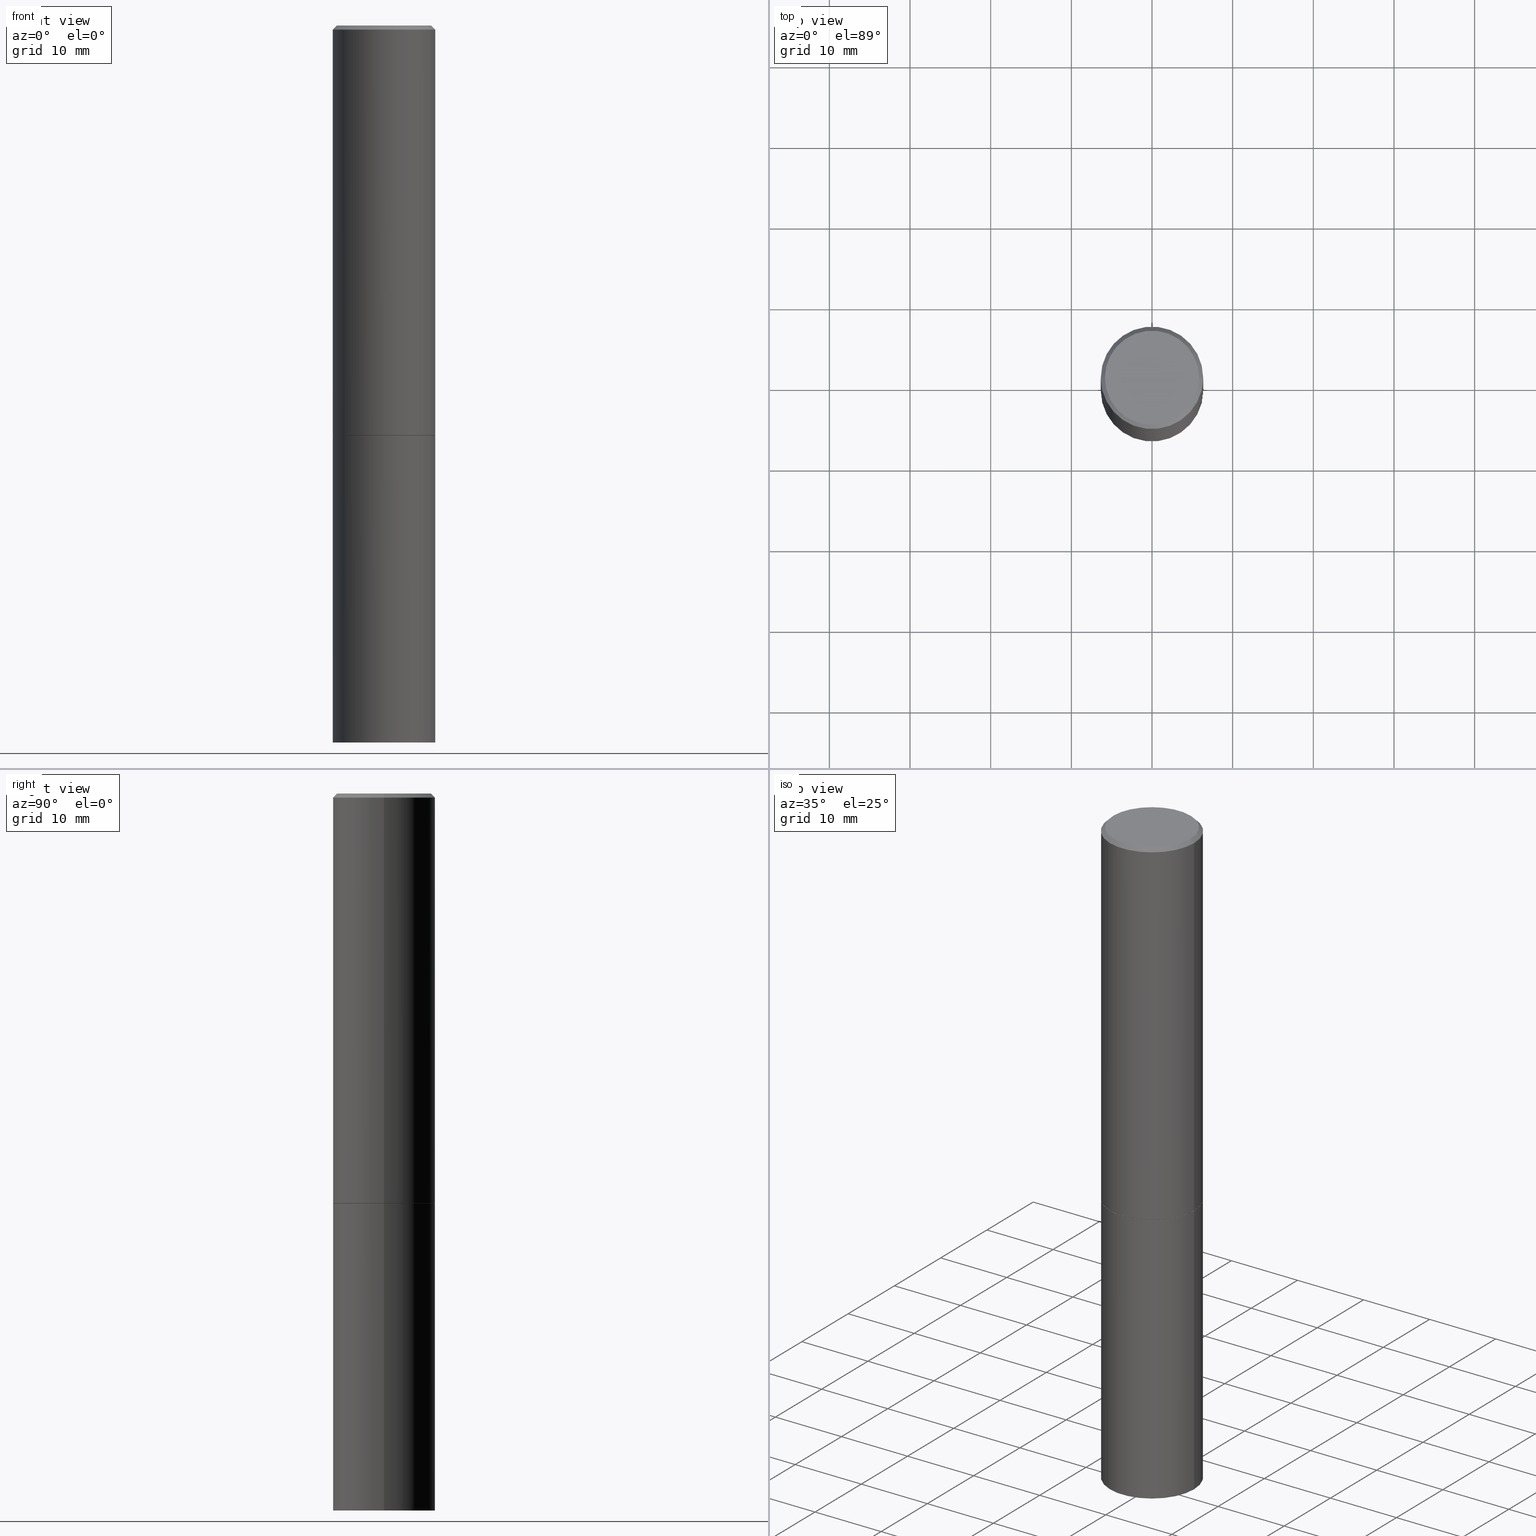
[diagram: canonical four-view strip — front | top / right | iso, engineering-drawing reading convention]
A machine part, canonical four-view strip (front | top / right | iso — engineering-drawing reading convention). The complete STEP part file that produces these views, byte-faithful:
ISO-10303-21;
HEADER;
FILE_DESCRIPTION (( 'STEP AP203' ),
    '1' );
FILE_NAME ('77354.STEP',
    '2024-05-03T15:05:08',
    ( '' ),
    ( '' ),
    'SwSTEP 2.0',
    'SolidWorks 2023',
    '' );
FILE_SCHEMA (( 'CONFIG_CONTROL_DESIGN' ));
ENDSEC;

DATA;
#1 = ORIENTED_EDGE ( 'NONE', *, *, #38, .F. ) ;
#2 = CC_DESIGN_APPROVAL ( #85, ( #232 ) ) ;
#3 = PERSON_AND_ORGANIZATION_ROLE ( 'design_owner' ) ;
#4 = APPROVAL_ROLE ( '' ) ;
#5 = AXIS2_PLACEMENT_3D ( 'NONE', #8, #68, #36 ) ;
#6 = AXIS2_PLACEMENT_3D ( 'NONE', #337, #287, #238 ) ;
#7 = CARTESIAN_POINT ( 'NONE',  ( 0.2299999999999998435, -1.681434332853597631E-15, -2.987958743069138192E-17 ) ) ;
#8 = CARTESIAN_POINT ( 'NONE',  ( 0.000000000000000000, 0.000000000000000000, 0.000000000000000000 ) ) ;
#9 = DIRECTION ( 'NONE',  ( 1.000000000000000000, -6.982962677686266711E-15, 0.000000000000000000 ) ) ;
#10 = ORIENTED_EDGE ( 'NONE', *, *, #168, .T. ) ;
#11 = ADVANCED_FACE ( 'NONE', ( #120 ), #57, .T. ) ;
#12 = DIRECTION ( 'NONE',  ( 1.000000000000000000, -6.982962677686265133E-15, 0.000000000000000000 ) ) ;
#13 = CC_DESIGN_PERSON_AND_ORGANIZATION_ASSIGNMENT ( #95, #45, ( #232 ) ) ;
#14 = AXIS2_PLACEMENT_3D ( 'NONE', #324, #75, #298 ) ;
#15 = DATE_AND_TIME ( #151, #116 ) ;
#16 = ORIENTED_EDGE ( 'NONE', *, *, #56, .T. ) ;
#17 = CARTESIAN_POINT ( 'NONE',  ( 1.745740669421652072E-15, 0.2499999999999877598, -3.500000000000000888 ) ) ;
#18 = DIRECTION ( 'NONE',  ( 1.000000000000000000, -6.982962677686266711E-15, 0.000000000000000000 ) ) ;
#19 = DIRECTION ( 'NONE',  ( -2.445468806185136597E-29, 3.491481338843145583E-15, 1.000000000000000000 ) ) ;
#20 = FACE_OUTER_BOUND ( 'NONE', #237, .T. ) ;
#21 = CARTESIAN_POINT ( 'NONE',  ( 0.2500000000000000000, -8.728703347107857054E-15, -2.000000000000000000 ) ) ;
#22 = ORIENTED_EDGE ( 'NONE', *, *, #74, .F. ) ;
#23 = APPLICATION_CONTEXT ( 'configuration controlled 3d designs of mechanical parts and assemblies' ) ;
#24 = EDGE_CURVE ( 'NONE', #288, #134, #44, .T. ) ;
#25 = EDGE_LOOP ( 'NONE', ( #10, #196 ) ) ;
#26 = CC_DESIGN_APPROVAL ( #314, ( #87 ) ) ;
#27 = FACE_OUTER_BOUND ( 'NONE', #352, .T. ) ;
#28 = ORIENTED_EDGE ( 'NONE', *, *, #313, .T. ) ;
#29 = SHAPE_DEFINITION_REPRESENTATION ( #99, #137 ) ;
#30 = PERSON_AND_ORGANIZATION ( #229, #82 ) ;
#31 = EDGE_CURVE ( 'NONE', #59, #258, #118, .T. ) ;
#32 = PERSON_AND_ORGANIZATION ( #229, #82 ) ;
#33 = ORIENTED_EDGE ( 'NONE', *, *, #138, .F. ) ;
#34 = AXIS2_PLACEMENT_3D ( 'NONE', #54, #354, #73 ) ;
#35 = PERSON_AND_ORGANIZATION ( #229, #82 ) ;
#36 = DIRECTION ( 'NONE',  ( 1.000000000000000000, -6.982962677686266711E-15, 4.876176775795935793E-29 ) ) ;
#37 = DIRECTION ( 'NONE',  ( -2.445468806185136597E-29, 3.491481338843145583E-15, 1.000000000000000000 ) ) ;
#38 = EDGE_CURVE ( 'NONE', #93, #291, #175, .T. ) ;
#39 = ORIENTED_EDGE ( 'NONE', *, *, #360, .F. ) ;
#40 = LINE ( 'NONE', #187, #310 ) ;
#41 = DATE_AND_TIME ( #275, #307 ) ;
#42 = LINE ( 'NONE', #283, #264 ) ;
#43 = CARTESIAN_POINT ( 'NONE',  ( 0.000000000000000000, 0.000000000000000000, 0.000000000000000000 ) ) ;
#44 = CIRCLE ( 'NONE', #86, 0.2500000000000000000 ) ;
#45 = PERSON_AND_ORGANIZATION_ROLE ( 'creator' ) ;
#46 = CARTESIAN_POINT ( 'NONE',  ( 4.890937612370288923E-31, -6.982962677686312563E-17, -0.02000000000000006287 ) ) ;
#47 = LINE ( 'NONE', #217, #219 ) ;
#48 = FACE_OUTER_BOUND ( 'NONE', #81, .T. ) ;
#49 = CIRCLE ( 'NONE', #363, 0.2489999999999999991 ) ;
#50 = EDGE_CURVE ( 'NONE', #323, #59, #338, .T. ) ;
#51 = DIRECTION ( 'NONE',  ( -0.7071067811865461294, 2.468850131082242072E-15, -0.7071067811865489050 ) ) ;
#52 = PERSON_AND_ORGANIZATION ( #229, #82 ) ;
#53 = ORIENTED_EDGE ( 'NONE', *, *, #325, .F. ) ;
#54 = CARTESIAN_POINT ( 'NONE',  ( 4.890937612370273194E-29, -6.982962677686291165E-15, -2.000000000000000000 ) ) ;
#55 = VERTEX_POINT ( 'NONE', #186 ) ;
#56 = EDGE_CURVE ( 'NONE', #134, #93, #42, .T. ) ;
#57 = CYLINDRICAL_SURFACE ( 'NONE', #5, 0.2500000000000000000 ) ;
#58 = DATE_AND_TIME ( #200, #316 ) ;
#59 = VERTEX_POINT ( 'NONE', #97 ) ;
#60 = CONICAL_SURFACE ( 'NONE', #169, 0.2499999999999998057, 0.7853981633974463916 ) ;
#61 = ADVANCED_FACE ( 'NONE', ( #215 ), #210, .T. ) ;
#62 = ORIENTED_EDGE ( 'NONE', *, *, #177, .F. ) ;
#63 = FACE_OUTER_BOUND ( 'NONE', #240, .T. ) ;
#64 = AXIS2_PLACEMENT_3D ( 'NONE', #349, #321, #18 ) ;
#65 = VERTEX_POINT ( 'NONE', #7 ) ;
#66 = CARTESIAN_POINT ( 'NONE',  ( 1.606081415867840081E-15, 0.2299999999999998435, -8.179805016492743936E-16 ) ) ;
#67 = APPROVAL_DATE_TIME ( #322, #85 ) ;
#68 = DIRECTION ( 'NONE',  ( -2.445468806185136597E-29, 3.491481338843145583E-15, 1.000000000000000000 ) ) ;
#69 = DIRECTION ( 'NONE',  ( 2.438088387897960049E-29, -3.491481338843145188E-15, -1.000000000000000000 ) ) ;
#70 = APPROVAL_ROLE ( '' ) ;
#71 = PLANE ( 'NONE',  #319 ) ;
#72 = AXIS2_PLACEMENT_3D ( 'NONE', #125, #358, #103 ) ;
#73 = DIRECTION ( 'NONE',  ( 1.000000000000000000, -6.982962677686265922E-15, 4.876176775795935793E-29 ) ) ;
#74 = EDGE_CURVE ( 'NONE', #171, #195, #317, .T. ) ;
#75 = DIRECTION ( 'NONE',  ( -2.445468806185136597E-29, 3.491481338843145583E-15, 1.000000000000000000 ) ) ;
#76 = EDGE_CURVE ( 'NONE', #65, #258, #216, .T. ) ;
#77 = ORIENTED_EDGE ( 'NONE', *, *, #339, .F. ) ;
#78 = CC_DESIGN_DATE_AND_TIME_ASSIGNMENT ( #206, #261, ( #236 ) ) ;
#79 = AXIS2_PLACEMENT_3D ( 'NONE', #157, #271, #121 ) ;
#80 = CARTESIAN_POINT ( 'NONE',  ( -0.2499999999999998057, 1.675911042644702196E-15, -0.02000000000000006287 ) ) ;
#81 = EDGE_LOOP ( 'NONE', ( #77, #183, #311, #53 ) ) ;
#82 = ORGANIZATION ( 'UNSPECIFIED', 'UNSPECIFIED', '' ) ;
#83 = COORDINATED_UNIVERSAL_TIME_OFFSET ( 5, 0, .BEHIND. ) ;
#84 = DIRECTION ( 'NONE',  ( -2.445468806185136597E-29, 3.491481338843145583E-15, 1.000000000000000000 ) ) ;
#85 = APPROVAL ( #299, 'UNSPECIFIED' ) ;
#86 = AXIS2_PLACEMENT_3D ( 'NONE', #180, #84, #203 ) ;
#87 = PRODUCT_DEFINITION_FORMATION_WITH_SPECIFIED_SOURCE ( 'ANY', '', #167, .NOT_KNOWN. ) ;
#88 = DIRECTION ( 'NONE',  ( 0.000000000000000000, 0.000000000000000000, 1.000000000000000000 ) ) ;
#89 = CARTESIAN_POINT ( 'NONE',  ( 0.2499999999999999167, -1.745740669421566283E-15, 1.219044193948983668E-29 ) ) ;
#90 = DIRECTION ( 'NONE',  ( -2.445468806185136597E-29, 3.491481338843145583E-15, 1.000000000000000000 ) ) ;
#91 = FACE_OUTER_BOUND ( 'NONE', #257, .T. ) ;
#92 = CIRCLE ( 'NONE', #155, 0.2500000000000000555 ) ;
#93 = VERTEX_POINT ( 'NONE', #356 ) ;
#94 = FACE_OUTER_BOUND ( 'NONE', #25, .T. ) ;
#95 = PERSON_AND_ORGANIZATION ( #229, #82 ) ;
#96 = CC_DESIGN_PERSON_AND_ORGANIZATION_ASSIGNMENT ( #52, #357, ( #87 ) ) ;
#97 = CARTESIAN_POINT ( 'NONE',  ( 0.2500000000000000555, -8.725211865769014047E-15, -1.998999999999999888 ) ) ;
#98 = DIRECTION ( 'NONE',  ( -2.445468806185136597E-29, 3.491481338843145583E-15, 1.000000000000000000 ) ) ;
#99 = PRODUCT_DEFINITION_SHAPE ( 'NONE', 'NONE',  #232 ) ;
#100 = ADVANCED_FACE ( 'NONE', ( #148 ), #143, .T. ) ;
#101 = FACE_OUTER_BOUND ( 'NONE', #201, .T. ) ;
#102 = LOCAL_TIME ( 11, 5, 8.000000000000000000, #245 ) ;
#103 = DIRECTION ( 'NONE',  ( 1.000000000000000000, -6.982962677686266711E-15, 4.876176775795935793E-29 ) ) ;
#104 =( NAMED_UNIT ( * ) PLANE_ANGLE_UNIT ( ) SI_UNIT ( $, .RADIAN. ) );
#105 = EDGE_CURVE ( 'NONE', #171, #59, #92, .T. ) ;
#106 = EDGE_LOOP ( 'NONE', ( #348, #193, #366, #147 ) ) ;
#107 = ORIENTED_EDGE ( 'NONE', *, *, #225, .F. ) ;
#108 = VECTOR ( 'NONE', #295, 39.37007874015748143 ) ;
#109 = DIRECTION ( 'NONE',  ( -1.000000000000000000, 6.982962677686266711E-15, 0.000000000000000000 ) ) ;
#110 = SECURITY_CLASSIFICATION_LEVEL ( 'unclassified' ) ;
#111 = APPROVAL_PERSON_ORGANIZATION ( #32, #85, #351 ) ;
#112 = ORIENTED_EDGE ( 'NONE', *, *, #38, .T. ) ;
#113 = PERSON_AND_ORGANIZATION ( #229, #82 ) ;
#114 = COORDINATED_UNIVERSAL_TIME_OFFSET ( 5, 0, .BEHIND. ) ;
#115 = CLOSED_SHELL ( 'NONE', ( #262, #160, #332, #11 ) ) ;
#116 = LOCAL_TIME ( 11, 5, 8.000000000000000000, #188 ) ;
#117 = ORIENTED_EDGE ( 'NONE', *, *, #50, .F. ) ;
#118 = LINE ( 'NONE', #89, #259 ) ;
#119 = CARTESIAN_POINT ( 'NONE',  ( 4.890937612370273194E-29, -6.982962677686291165E-15, -2.000000000000000000 ) ) ;
#120 = FACE_OUTER_BOUND ( 'NONE', #149, .T. ) ;
#121 = DIRECTION ( 'NONE',  ( 1.000000000000000000, -6.982962677686266711E-15, 0.000000000000000000 ) ) ;
#122 = CIRCLE ( 'NONE', #136, 0.2299999999999998435 ) ;
#123 = CALENDAR_DATE ( 2024, 3, 5 ) ;
#124 = CARTESIAN_POINT ( 'NONE',  ( 0.2489999999999999991, -8.721720384430171040E-15, -2.000000000000000000 ) ) ;
#125 = CARTESIAN_POINT ( 'NONE',  ( 0.000000000000000000, 0.000000000000000000, 0.000000000000000000 ) ) ;
#126 = EDGE_CURVE ( 'NONE', #55, #323, #49, .T. ) ;
#127 = DIRECTION ( 'NONE',  ( -1.000000000000000000, 6.982962677686266711E-15, 0.000000000000000000 ) ) ;
#128 = PLANE ( 'NONE',  #131 ) ;
#129 = CYLINDRICAL_SURFACE ( 'NONE', #72, 0.2500000000000000000 ) ;
#130 = AXIS2_PLACEMENT_3D ( 'NONE', #212, #90, #152 ) ;
#131 = AXIS2_PLACEMENT_3D ( 'NONE', #66, #69, #154 ) ;
#132 = PLANE ( 'NONE',  #34 ) ;
#133 = DIRECTION ( 'NONE',  ( -2.445468806185136597E-29, 3.491481338843145583E-15, 1.000000000000000000 ) ) ;
#134 = VERTEX_POINT ( 'NONE', #268 ) ;
#135 = ORIENTED_EDGE ( 'NONE', *, *, #31, .T. ) ;
#136 = AXIS2_PLACEMENT_3D ( 'NONE', #300, #191, #189 ) ;
#137 = ADVANCED_BREP_SHAPE_REPRESENTATION ( '77354', ( #166, #159, #341 ), #301 ) ;
#138 = EDGE_CURVE ( 'NONE', #288, #291, #40, .T. ) ;
#139 = CARTESIAN_POINT ( 'NONE',  ( 4.890937612370273194E-29, -6.982962677686291165E-15, -2.000000000000000000 ) ) ;
#140 = PERSON_AND_ORGANIZATION_ROLE ( 'classification_officer' ) ;
#141 = CLOSED_SHELL ( 'NONE', ( #100, #280, #286, #350, #142, #61, #365, #252 ) ) ;
#142 = ADVANCED_FACE ( 'NONE', ( #101 ), #184, .T. ) ;
#143 = CONICAL_SURFACE ( 'NONE', #315, 0.2489999999999999991, 0.7853981633974311816 ) ;
#144 = ORIENTED_EDGE ( 'NONE', *, *, #105, .T. ) ;
#145 = AXIS2_PLACEMENT_3D ( 'NONE', #220, #192, #329 ) ;
#146 = APPLICATION_PROTOCOL_DEFINITION ( 'international standard', 'config_control_design', 1994, #23 ) ;
#147 = ORIENTED_EDGE ( 'NONE', *, *, #105, .F. ) ;
#148 = FACE_OUTER_BOUND ( 'NONE', #333, .T. ) ;
#149 = EDGE_LOOP ( 'NONE', ( #343, #222, #267, #1 ) ) ;
#150 = DIRECTION ( 'NONE',  ( -2.445468806185136597E-29, 3.491481338843145583E-15, 1.000000000000000000 ) ) ;
#151 = CALENDAR_DATE ( 2024, 3, 5 ) ;
#152 = DIRECTION ( 'NONE',  ( 1.000000000000000000, -6.982962677686266711E-15, 0.000000000000000000 ) ) ;
#153 = EDGE_CURVE ( 'NONE', #134, #288, #199, .T. ) ;
#154 = DIRECTION ( 'NONE',  ( -1.000000000000000000, 6.982962677686265922E-15, -4.876176775795935793E-29 ) ) ;
#155 = AXIS2_PLACEMENT_3D ( 'NONE', #248, #273, #12 ) ;
#156 = CC_DESIGN_SECURITY_CLASSIFICATION ( #236, ( #87 ) ) ;
#157 = CARTESIAN_POINT ( 'NONE',  ( 4.890937612370273194E-29, -6.982962677686291165E-15, -2.000000000000000000 ) ) ;
#158 = CARTESIAN_POINT ( 'NONE',  ( 0.2499999999999998057, -1.784954126219744611E-15, -0.02000000000000006287 ) ) ;
#159 = MANIFOLD_SOLID_BREP ( 'Body-Move/Copy2[2]', #141 ) ;
#160 = ADVANCED_FACE ( 'NONE', ( #91 ), #71, .T. ) ;
#161 = AXIS2_PLACEMENT_3D ( 'NONE', #139, #174, #266 ) ;
#162 = CIRCLE ( 'NONE', #194, 0.2499999999999998057 ) ;
#163 =( NAMED_UNIT ( * ) SI_UNIT ( $, .STERADIAN. ) SOLID_ANGLE_UNIT ( ) );
#164 = DIRECTION ( 'NONE',  ( 1.000000000000000000, -6.982962677686266711E-15, 4.875813741439103137E-29 ) ) ;
#165 = UNCERTAINTY_MEASURE_WITH_UNIT (LENGTH_MEASURE( 1.000000000000000082E-05 ), #361, 'distance_accuracy_value', 'NONE');
#166 = MANIFOLD_SOLID_BREP ( 'Body-Move/Copy2[1]', #115 ) ;
#167 = PRODUCT ( '77354', '77354', '', ( #179 ) ) ;
#168 = EDGE_CURVE ( 'NONE', #364, #65, #122, .T. ) ;
#169 = AXIS2_PLACEMENT_3D ( 'NONE', #227, #278, #109 ) ;
#170 = FACE_OUTER_BOUND ( 'NONE', #228, .T. ) ;
#171 = VERTEX_POINT ( 'NONE', #276 ) ;
#172 = PERSON_AND_ORGANIZATION_ROLE ( 'design_supplier' ) ;
#173 = EDGE_CURVE ( 'NONE', #258, #195, #162, .T. ) ;
#174 = DIRECTION ( 'NONE',  ( -2.445468806185136597E-29, 3.491481338843145583E-15, 1.000000000000000000 ) ) ;
#175 = CIRCLE ( 'NONE', #130, 0.2500000000000000000 ) ;
#176 = AXIS2_PLACEMENT_3D ( 'NONE', #239, #178, #127 ) ;
#177 = EDGE_CURVE ( 'NONE', #291, #93, #359, .T. ) ;
#178 = DIRECTION ( 'NONE',  ( 2.445468806185136597E-29, -3.491481338843145583E-15, -1.000000000000000000 ) ) ;
#179 = MECHANICAL_CONTEXT ( 'NONE', #233, 'mechanical' ) ;
#180 = CARTESIAN_POINT ( 'NONE',  ( 8.559140821647976968E-29, -1.222018468595100934E-14, -3.500000000000000000 ) ) ;
#181 = CYLINDRICAL_SURFACE ( 'NONE', #182, 0.2499999999999999167 ) ;
#182 = AXIS2_PLACEMENT_3D ( 'NONE', #247, #37, #308 ) ;
#183 = ORIENTED_EDGE ( 'NONE', *, *, #76, .T. ) ;
#184 = CYLINDRICAL_SURFACE ( 'NONE', #226, 0.2499999999999999167 ) ;
#185 = COORDINATED_UNIVERSAL_TIME_OFFSET ( 5, 0, .BEHIND. ) ;
#186 = CARTESIAN_POINT ( 'NONE',  ( -0.2489999999999999991, -5.208412811295418518E-15, -2.000000000000000000 ) ) ;
#187 = CARTESIAN_POINT ( 'NONE',  ( 0.2500000000000000000, -1.745740669421566678E-15, 1.219044193948983948E-29 ) ) ;
#188 = COORDINATED_UNIVERSAL_TIME_OFFSET ( 5, 0, .BEHIND. ) ;
#189 = DIRECTION ( 'NONE',  ( 1.000000000000000000, -6.982962677686266711E-15, 4.875813741439103137E-29 ) ) ;
#190 = APPROVAL_PERSON_ORGANIZATION ( #30, #330, #4 ) ;
#191 = DIRECTION ( 'NONE',  ( -2.445468806185136597E-29, 3.491481338843145583E-15, 1.000000000000000000 ) ) ;
#192 = DIRECTION ( 'NONE',  ( -2.445468806185136597E-29, 3.491481338843145583E-15, 1.000000000000000000 ) ) ;
#193 = ORIENTED_EDGE ( 'NONE', *, *, #126, .T. ) ;
#194 = AXIS2_PLACEMENT_3D ( 'NONE', #46, #98, #318 ) ;
#195 = VERTEX_POINT ( 'NONE', #213 ) ;
#196 = ORIENTED_EDGE ( 'NONE', *, *, #339, .T. ) ;
#197 = DIRECTION ( 'NONE',  ( 1.000000000000000000, -6.982962677686266711E-15, 0.000000000000000000 ) ) ;
#198 = APPROVAL_DATE_TIME ( #15, #314 ) ;
#199 = CIRCLE ( 'NONE', #14, 0.2500000000000000000 ) ;
#200 = CALENDAR_DATE ( 2024, 3, 5 ) ;
#201 = EDGE_LOOP ( 'NONE', ( #22, #144, #135, #107 ) ) ;
#202 = CC_DESIGN_DATE_AND_TIME_ASSIGNMENT ( #41, #296, ( #232 ) ) ;
#203 = DIRECTION ( 'NONE',  ( 1.000000000000000000, -6.982962677686270655E-15, 0.000000000000000000 ) ) ;
#204 = PERSON_AND_ORGANIZATION ( #229, #82 ) ;
#205 = EDGE_CURVE ( 'NONE', #55, #171, #47, .T. ) ;
#206 = DATE_AND_TIME ( #263, #290 ) ;
#207 = EDGE_LOOP ( 'NONE', ( #242, #16, #62, #33 ) ) ;
#208 = DIRECTION ( 'NONE',  ( -2.445468806185136877E-29, 3.491481338843145188E-15, 1.000000000000000000 ) ) ;
#209 = DIRECTION ( 'NONE',  ( 1.000000000000000000, -6.982962677686266711E-15, 0.000000000000000000 ) ) ;
#210 = CONICAL_SURFACE ( 'NONE', #161, 0.2489999999999999991, 0.7853981633974311816 ) ;
#211 = APPROVAL_PERSON_ORGANIZATION ( #214, #314, #70 ) ;
#212 = CARTESIAN_POINT ( 'NONE',  ( 4.890937612370273194E-29, -6.982962677686291165E-15, -2.000000000000000000 ) ) ;
#213 = CARTESIAN_POINT ( 'NONE',  ( -0.2499999999999998057, 1.675911042644702196E-15, -0.02000000000000006287 ) ) ;
#214 = PERSON_AND_ORGANIZATION ( #229, #82 ) ;
#215 = FACE_OUTER_BOUND ( 'NONE', #106, .T. ) ;
#216 = LINE ( 'NONE', #292, #108 ) ;
#217 = CARTESIAN_POINT ( 'NONE',  ( -0.2489999999999999991, -5.213711265643641709E-15, -2.000000000000000000 ) ) ;
#218 = VECTOR ( 'NONE', #312, 39.37007874015748854 ) ;
#219 = VECTOR ( 'NONE', #303, 39.37007874015748854 ) ;
#220 = CARTESIAN_POINT ( 'NONE',  ( 4.888492143564087591E-29, -6.979471196347447369E-15, -1.998999999999999888 ) ) ;
#221 = CARTESIAN_POINT ( 'NONE',  ( -0.2499999999999999167, 1.776356839400249873E-15, -1.229733772563726165E-29 ) ) ;
#222 = ORIENTED_EDGE ( 'NONE', *, *, #153, .T. ) ;
#223 = PRODUCT_RELATED_PRODUCT_CATEGORY ( 'detail', '', ( #167 ) ) ;
#224 = CARTESIAN_POINT ( 'NONE',  ( 4.890937612370273194E-29, -6.982962677686291165E-15, -2.000000000000000000 ) ) ;
#225 = EDGE_CURVE ( 'NONE', #195, #258, #335, .T. ) ;
#226 = AXIS2_PLACEMENT_3D ( 'NONE', #43, #150, #327 ) ;
#227 = CARTESIAN_POINT ( 'NONE',  ( 4.890937612370288923E-31, -6.982962677686312563E-17, -0.02000000000000006287 ) ) ;
#228 = EDGE_LOOP ( 'NONE', ( #306, #112 ) ) ;
#229 = PERSON ( 'UNSPECIFIED', 'UNSPECIFIED', 'UNSPECIFIED', ('UNSPECIFIED'), ('UNSPECIFIED'), ('UNSPECIFIED') ) ;
#230 = CARTESIAN_POINT ( 'NONE',  ( 0.2500000000000000000, -1.396592535537257602E-14, -3.500000000000000000 ) ) ;
#231 = ORIENTED_EDGE ( 'NONE', *, *, #325, .T. ) ;
#232 = PRODUCT_DEFINITION ( 'UNKNOWN', '', #87, #340 ) ;
#233 = APPLICATION_CONTEXT ( 'configuration controlled 3d designs of mechanical parts and assemblies' ) ;
#234 = APPROVAL_STATUS ( 'not_yet_approved' ) ;
#235 = ORIENTED_EDGE ( 'NONE', *, *, #225, .T. ) ;
#236 = SECURITY_CLASSIFICATION ( '', '', #110 ) ;
#237 = EDGE_LOOP ( 'NONE', ( #255, #256 ) ) ;
#238 = DIRECTION ( 'NONE',  ( -1.000000000000000000, 6.982962677686265922E-15, -4.876176775795935793E-29 ) ) ;
#239 = CARTESIAN_POINT ( 'NONE',  ( 4.890937612370288923E-31, -6.982962677686312563E-17, -0.02000000000000006287 ) ) ;
#240 = EDGE_LOOP ( 'NONE', ( #320, #297, #246, #345 ) ) ;
#241 = CARTESIAN_POINT ( 'NONE',  ( 4.890937612370273194E-29, -6.982962677686291165E-15, -2.000000000000000000 ) ) ;
#242 = ORIENTED_EDGE ( 'NONE', *, *, #24, .T. ) ;
#243 = DIRECTION ( 'NONE',  ( -2.445468806185136877E-29, 3.491481338843145188E-15, 1.000000000000000000 ) ) ;
#244 = CIRCLE ( 'NONE', #260, 0.2489999999999999991 ) ;
#245 = COORDINATED_UNIVERSAL_TIME_OFFSET ( 5, 0, .BEHIND. ) ;
#246 = ORIENTED_EDGE ( 'NONE', *, *, #173, .F. ) ;
#247 = CARTESIAN_POINT ( 'NONE',  ( 0.000000000000000000, 0.000000000000000000, 0.000000000000000000 ) ) ;
#248 = CARTESIAN_POINT ( 'NONE',  ( 4.888492143564087591E-29, -6.979471196347447369E-15, -1.998999999999999888 ) ) ;
#249 = DIRECTION ( 'NONE',  ( -1.000000000000000000, 6.982962677686265922E-15, -4.876176775795935793E-29 ) ) ;
#250 = LENGTH_MEASURE_WITH_UNIT ( LENGTH_MEASURE( 0.02539999999999999897 ), #302 );
#251 = CARTESIAN_POINT ( 'NONE',  ( -0.2299999999999998435, 1.640996229256271139E-15, -2.987958743071423423E-17 ) ) ;
#252 = ADVANCED_FACE ( 'NONE', ( #94 ), #128, .F. ) ;
#253 = CC_DESIGN_PERSON_AND_ORGANIZATION_ASSIGNMENT ( #204, #140, ( #236 ) ) ;
#254 = CARTESIAN_POINT ( 'NONE',  ( 0.2489999999999999991, -8.721720384430171040E-15, -2.000000000000000000 ) ) ;
#255 = ORIENTED_EDGE ( 'NONE', *, *, #313, .F. ) ;
#256 = ORIENTED_EDGE ( 'NONE', *, *, #126, .F. ) ;
#257 = EDGE_LOOP ( 'NONE', ( #362, #270 ) ) ;
#258 = VERTEX_POINT ( 'NONE', #158 ) ;
#259 = VECTOR ( 'NONE', #208, 39.37007874015748143 ) ;
#260 = AXIS2_PLACEMENT_3D ( 'NONE', #224, #133, #197 ) ;
#261 = DATE_TIME_ROLE ( 'classification_date' ) ;
#262 = ADVANCED_FACE ( 'NONE', ( #277 ), #129, .T. ) ;
#263 = CALENDAR_DATE ( 2024, 3, 5 ) ;
#264 = VECTOR ( 'NONE', #272, 39.37007874015748143 ) ;
#265 = CONICAL_SURFACE ( 'NONE', #176, 0.2499999999999998057, 0.7853981633974463916 ) ;
#266 = DIRECTION ( 'NONE',  ( 1.000000000000000000, -6.982962677686266711E-15, 0.000000000000000000 ) ) ;
#267 = ORIENTED_EDGE ( 'NONE', *, *, #138, .T. ) ;
#268 = CARTESIAN_POINT ( 'NONE',  ( -0.2500000000000000000, -7.825216842418399394E-15, -3.500000000000000000 ) ) ;
#269 = CARTESIAN_POINT ( 'NONE',  ( 0.000000000000000000, 0.000000000000000000, 0.000000000000000000 ) ) ;
#270 = ORIENTED_EDGE ( 'NONE', *, *, #153, .F. ) ;
#271 = DIRECTION ( 'NONE',  ( -2.445468806185136597E-29, 3.491481338843145583E-15, 1.000000000000000000 ) ) ;
#272 = DIRECTION ( 'NONE',  ( -2.445468806185136877E-29, 3.491481338843145188E-15, 1.000000000000000000 ) ) ;
#273 = DIRECTION ( 'NONE',  ( -2.445468806185136597E-29, 3.491481338843145583E-15, 1.000000000000000000 ) ) ;
#274 = VECTOR ( 'NONE', #51, 39.37007874015748143 ) ;
#275 = CALENDAR_DATE ( 2024, 3, 5 ) ;
#276 = CARTESIAN_POINT ( 'NONE',  ( -0.2500000000000000555, -1.748293572161903489E-15, -1.998999999999999888 ) ) ;
#277 = FACE_OUTER_BOUND ( 'NONE', #207, .T. ) ;
#278 = DIRECTION ( 'NONE',  ( 2.445468806185136597E-29, -3.491481338843145583E-15, -1.000000000000000000 ) ) ;
#279 = CIRCLE ( 'NONE', #282, 0.2299999999999998435 ) ;
#280 = ADVANCED_FACE ( 'NONE', ( #63 ), #181, .T. ) ;
#281 = LINE ( 'NONE', #80, #274 ) ;
#282 = AXIS2_PLACEMENT_3D ( 'NONE', #342, #347, #164 ) ;
#283 = CARTESIAN_POINT ( 'NONE',  ( -0.2500000000000000000, 1.776356839400250465E-15, -1.229733772563726445E-29 ) ) ;
#284 = APPROVAL_DATE_TIME ( #58, #330 ) ;
#285 = CIRCLE ( 'NONE', #145, 0.2500000000000000555 ) ;
#286 = ADVANCED_FACE ( 'NONE', ( #48 ), #60, .T. ) ;
#287 = DIRECTION ( 'NONE',  ( 2.438088387897960049E-29, -3.491481338843145188E-15, -1.000000000000000000 ) ) ;
#288 = VERTEX_POINT ( 'NONE', #230 ) ;
#289 = CC_DESIGN_PERSON_AND_ORGANIZATION_ASSIGNMENT ( #113, #172, ( #87 ) ) ;
#290 = LOCAL_TIME ( 11, 5, 8.000000000000000000, #114 ) ;
#291 = VERTEX_POINT ( 'NONE', #21 ) ;
#292 = CARTESIAN_POINT ( 'NONE',  ( 0.2499999999999998057, -1.784954126219744611E-15, -0.02000000000000006287 ) ) ;
#293 = APPLICATION_PROTOCOL_DEFINITION ( 'international standard', 'config_control_design', 1994, #233 ) ;
#294 = ORIENTED_EDGE ( 'NONE', *, *, #168, .F. ) ;
#295 = DIRECTION ( 'NONE',  ( 0.7071067811865461294, -7.319954787623251312E-15, -0.7071067811865489050 ) ) ;
#296 = DATE_TIME_ROLE ( 'creation_date' ) ;
#297 = ORIENTED_EDGE ( 'NONE', *, *, #74, .T. ) ;
#298 = DIRECTION ( 'NONE',  ( 1.000000000000000000, -6.982962677686270655E-15, 0.000000000000000000 ) ) ;
#299 = APPROVAL_STATUS ( 'not_yet_approved' ) ;
#300 = CARTESIAN_POINT ( 'NONE',  ( 7.306959900346538153E-46, -1.043240219266313067E-31, -2.987958743070287587E-17 ) ) ;
#301 =( GEOMETRIC_REPRESENTATION_CONTEXT ( 3 ) GLOBAL_UNCERTAINTY_ASSIGNED_CONTEXT ( ( #165 ) ) GLOBAL_UNIT_ASSIGNED_CONTEXT ( ( #361, #104, #163 ) ) REPRESENTATION_CONTEXT ( 'NONE', 'WORKASPACE' ) );
#302 =( LENGTH_UNIT ( ) NAMED_UNIT ( * ) SI_UNIT ( $, .METRE. ) );
#303 = DIRECTION ( 'NONE',  ( -0.7071067811865353603, 7.493145998870309984E-15, 0.7071067811865595631 ) ) ;
#304 = DIRECTION ( 'NONE',  ( -2.445468806185136877E-29, 3.491481338843145188E-15, 1.000000000000000000 ) ) ;
#305 = PLANE ( 'NONE',  #6 ) ;
#306 = ORIENTED_EDGE ( 'NONE', *, *, #177, .T. ) ;
#307 = LOCAL_TIME ( 11, 5, 8.000000000000000000, #185 ) ;
#308 = DIRECTION ( 'NONE',  ( 1.000000000000000000, -6.982962677686267499E-15, 4.876176775795936353E-29 ) ) ;
#309 = CC_DESIGN_PERSON_AND_ORGANIZATION_ASSIGNMENT ( #35, #3, ( #167 ) ) ;
#310 = VECTOR ( 'NONE', #243, 39.37007874015748143 ) ;
#311 = ORIENTED_EDGE ( 'NONE', *, *, #173, .T. ) ;
#312 = DIRECTION ( 'NONE',  ( 0.7071067811865353603, -2.468850131082130054E-15, 0.7071067811865595631 ) ) ;
#313 = EDGE_CURVE ( 'NONE', #323, #55, #244, .T. ) ;
#314 = APPROVAL ( #326, 'UNSPECIFIED' ) ;
#315 = AXIS2_PLACEMENT_3D ( 'NONE', #119, #19, #9 ) ;
#316 = LOCAL_TIME ( 11, 5, 8.000000000000000000, #83 ) ;
#317 = LINE ( 'NONE', #221, #334 ) ;
#318 = DIRECTION ( 'NONE',  ( 1.000000000000000000, -6.982962677686266711E-15, 0.000000000000000000 ) ) ;
#319 = AXIS2_PLACEMENT_3D ( 'NONE', #17, #353, #249 ) ;
#320 = ORIENTED_EDGE ( 'NONE', *, *, #360, .T. ) ;
#321 = DIRECTION ( 'NONE',  ( -2.445468806185136597E-29, 3.491481338843145583E-15, 1.000000000000000000 ) ) ;
#322 = DATE_AND_TIME ( #123, #102 ) ;
#323 = VERTEX_POINT ( 'NONE', #254 ) ;
#324 = CARTESIAN_POINT ( 'NONE',  ( 8.559140821647976968E-29, -1.222018468595100934E-14, -3.500000000000000000 ) ) ;
#325 = EDGE_CURVE ( 'NONE', #364, #195, #281, .T. ) ;
#326 = APPROVAL_STATUS ( 'not_yet_approved' ) ;
#327 = DIRECTION ( 'NONE',  ( 1.000000000000000000, -6.982962677686267499E-15, 4.876176775795936353E-29 ) ) ;
#328 = CC_DESIGN_APPROVAL ( #330, ( #236 ) ) ;
#329 = DIRECTION ( 'NONE',  ( 1.000000000000000000, -6.982962677686265133E-15, 0.000000000000000000 ) ) ;
#330 = APPROVAL ( #234, 'UNSPECIFIED' ) ;
#331 = ORIENTED_EDGE ( 'NONE', *, *, #205, .T. ) ;
#332 = ADVANCED_FACE ( 'NONE', ( #170 ), #305, .F. ) ;
#333 = EDGE_LOOP ( 'NONE', ( #28, #331, #39, #117 ) ) ;
#334 = VECTOR ( 'NONE', #304, 39.37007874015748143 ) ;
#335 = CIRCLE ( 'NONE', #64, 0.2499999999999998057 ) ;
#336 = ORIENTED_EDGE ( 'NONE', *, *, #76, .F. ) ;
#337 = CARTESIAN_POINT ( 'NONE',  ( 1.745740669421615390E-15, 0.2499999999999930334, -2.000000000000000888 ) ) ;
#338 = LINE ( 'NONE', #124, #218 ) ;
#339 = EDGE_CURVE ( 'NONE', #65, #364, #279, .T. ) ;
#340 = DESIGN_CONTEXT ( 'detailed design', #23, 'design' ) ;
#341 = AXIS2_PLACEMENT_3D ( 'NONE', #269, #88, #344 ) ;
#342 = CARTESIAN_POINT ( 'NONE',  ( 7.306959900346538153E-46, -1.043240219266313067E-31, -2.987958743070287587E-17 ) ) ;
#343 = ORIENTED_EDGE ( 'NONE', *, *, #56, .F. ) ;
#344 = DIRECTION ( 'NONE',  ( 1.000000000000000000, 0.000000000000000000, 0.000000000000000000 ) ) ;
#345 = ORIENTED_EDGE ( 'NONE', *, *, #31, .F. ) ;
#346 = DIRECTION ( 'NONE',  ( -2.445468806185136597E-29, 3.491481338843145583E-15, 1.000000000000000000 ) ) ;
#347 = DIRECTION ( 'NONE',  ( -2.445468806185136597E-29, 3.491481338843145583E-15, 1.000000000000000000 ) ) ;
#348 = ORIENTED_EDGE ( 'NONE', *, *, #205, .F. ) ;
#349 = CARTESIAN_POINT ( 'NONE',  ( 4.890937612370288923E-31, -6.982962677686312563E-17, -0.02000000000000006287 ) ) ;
#350 = ADVANCED_FACE ( 'NONE', ( #27 ), #265, .T. ) ;
#351 = APPROVAL_ROLE ( '' ) ;
#352 = EDGE_LOOP ( 'NONE', ( #336, #294, #231, #235 ) ) ;
#353 = DIRECTION ( 'NONE',  ( 2.438088387897960049E-29, -3.491481338843145188E-15, -1.000000000000000000 ) ) ;
#354 = DIRECTION ( 'NONE',  ( -2.438088387897960049E-29, 3.491481338843145188E-15, 1.000000000000000000 ) ) ;
#355 = DIMENSIONAL_EXPONENTS ( 1.000000000000000000, 0.000000000000000000, 0.000000000000000000, 0.000000000000000000, 0.000000000000000000, 0.000000000000000000, 0.000000000000000000 ) ;
#356 = CARTESIAN_POINT ( 'NONE',  ( -0.2500000000000000000, -7.825216842418399394E-15, -2.000000000000000000 ) ) ;
#357 = PERSON_AND_ORGANIZATION_ROLE ( 'creator' ) ;
#358 = DIRECTION ( 'NONE',  ( -2.445468806185136597E-29, 3.491481338843145583E-15, 1.000000000000000000 ) ) ;
#359 = CIRCLE ( 'NONE', #79, 0.2500000000000000000 ) ;
#360 = EDGE_CURVE ( 'NONE', #59, #171, #285, .T. ) ;
#361 =( CONVERSION_BASED_UNIT ( 'INCH', #250 ) LENGTH_UNIT ( ) NAMED_UNIT ( #355 ) );
#362 = ORIENTED_EDGE ( 'NONE', *, *, #24, .F. ) ;
#363 = AXIS2_PLACEMENT_3D ( 'NONE', #241, #346, #209 ) ;
#364 = VERTEX_POINT ( 'NONE', #251 ) ;
#365 = ADVANCED_FACE ( 'NONE', ( #20 ), #132, .F. ) ;
#366 = ORIENTED_EDGE ( 'NONE', *, *, #50, .T. ) ;
ENDSEC;
END-ISO-10303-21;
